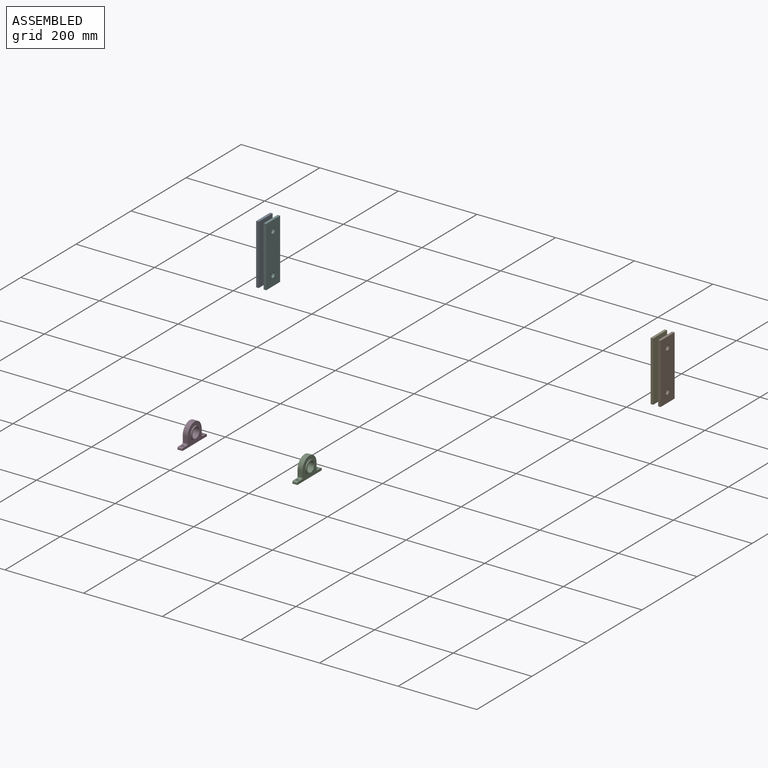
[diagram: assembled view]
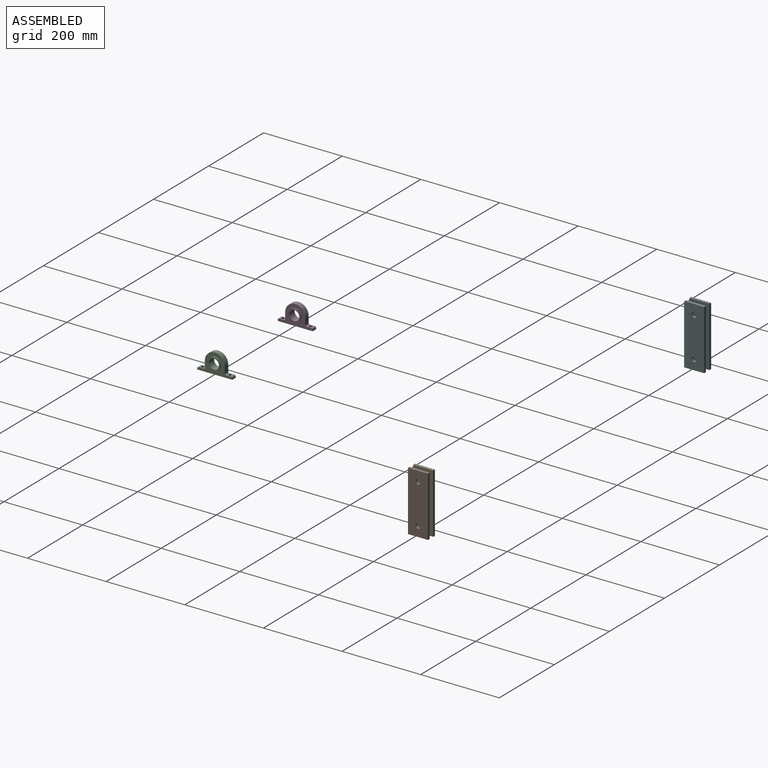
[diagram: assembled view, second angle]
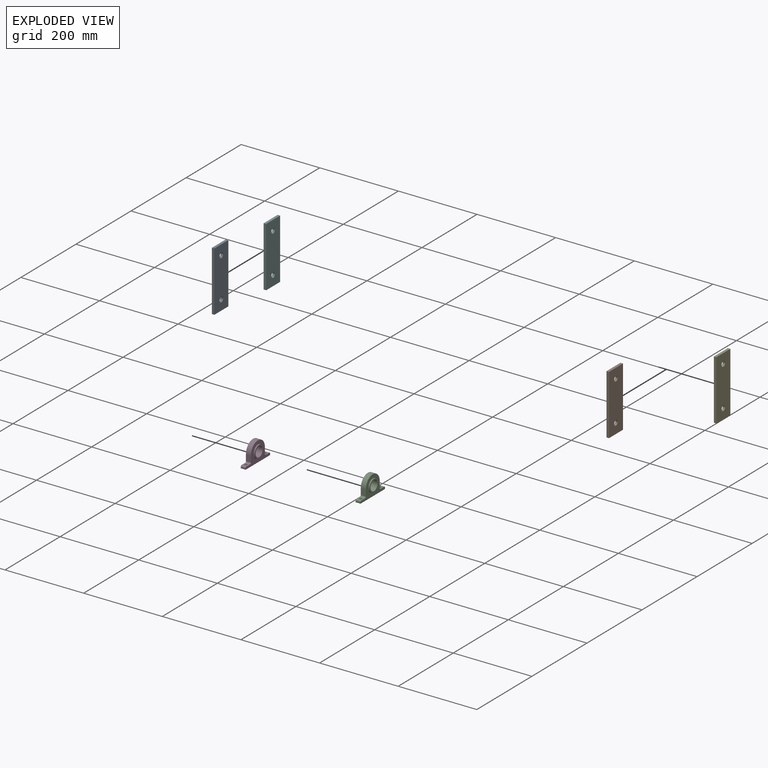
[diagram: exploded view]
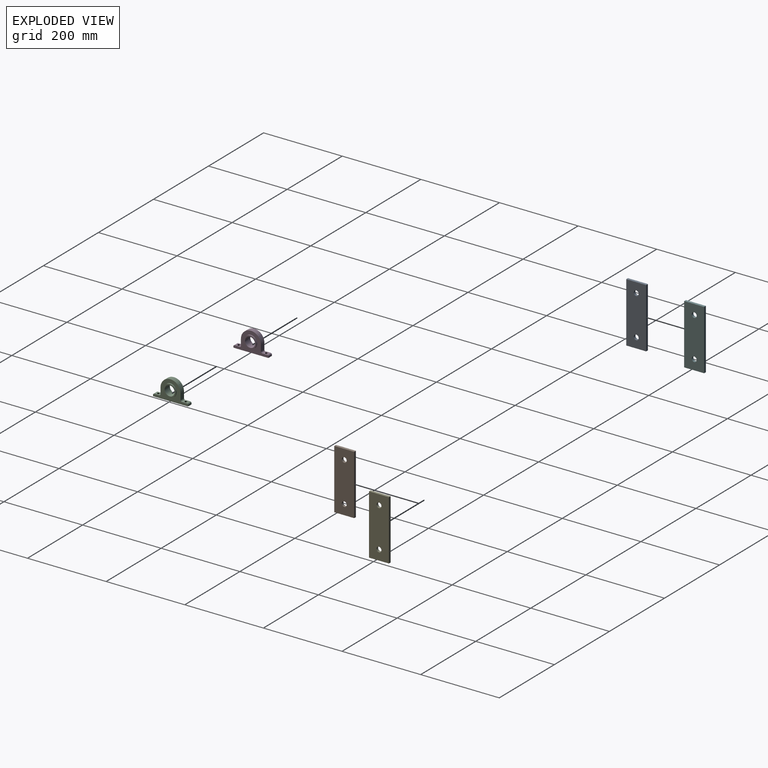
[diagram: exploded view, second angle]
ASSEMBLY  parts=6 mates=2
PART A: 8 faces, bbox 6.4x50.8x152.4 mm
  f0: plane 50.8x6.35mm, normal (0,0,1), area 322.6mm2, adj f1,f5,f6,f7
  f1: plane 152.4x6.35mm, normal (0,-1,0), area 967.7mm2, adj f0,f2,f6,f7
  f2: plane 50.8x6.35mm, normal (0,0,-1), area 322.6mm2, adj f1,f5,f6,f7
  f3: cylinder r=6.35mm len=12.7mm, axis (-1,0,0), area 253.4mm2, adj f6,f7
  f4: cylinder r=6.35mm len=12.7mm, axis (-1,0,0), area 253.4mm2, adj f6,f7
  f5: plane 152.4x6.35mm, normal (0,1,0), area 967.7mm2, adj f0,f2,f6,f7
  f6: plane 152.4x50.8mm, normal (1,0,0), area 7488.6mm2, adj f0,f1,f2,f3,f4,f5
  f7: plane 152.4x50.8mm, normal (-1,0,0), area 7488.6mm2, adj f0,f1,f2,f3,f4,f5
PART B: same geometry as A
PART C: 21 faces, bbox 19.1x88.9x50.8 mm
  f0: plane 88.9x12.7mm, normal (0,0,-1), area 1065.7mm2, adj f1,f11,f12,f13,f19,f20
  f1: plane 12.7x3.18mm, normal (0,1,0), area 40.3mm2, adj f0,f2,f12,f13
  f2: cylinder r=3.17mm len=12.7mm, axis (-1,0,0), area 63.3mm2, adj f1,f3,f12,f13
  f3: plane 12.7x12.7mm, normal (0,0,1), area 129.6mm2, adj f2,f4,f12,f13,f20
  f4: cylinder r=3.17mm len=12.7mm, axis (-1,0,0), area 63.3mm2, adj f3,f5,f12,f13
  f5: plane 15.88x12.7mm, normal (0,1,0), area 201.6mm2, adj f4,f6,f12,f13
  f6: cylinder r=25.4mm len=50.8mm, axis (-1,0,0), area 1013.4mm2, adj f5,f7,f12,f13
  f7: plane 15.88x12.7mm, normal (0,-1,0), area 201.6mm2, adj f6,f8,f12,f13
  f8: cylinder r=3.17mm len=12.7mm, axis (-1,0,0), area 63.3mm2, adj f7,f9,f12,f13
  f9: plane 12.7x12.7mm, normal (0,0,1), area 129.6mm2, adj f8,f10,f12,f13,f19
  f10: cylinder r=3.17mm len=12.7mm, axis (-1,0,0), area 63.3mm2, adj f9,f11,f12,f13
  f11: plane 12.7x3.18mm, normal (0,-1,0), area 40.3mm2, adj f0,f10,f12,f13
  f12: plane 88.9x50.8mm, normal (1,0,0), area 1753.9mm2, adj f0,f1,f2,f3,f4,f5,f6,f7
  f13: plane 88.9x50.8mm, normal (-1,0,0), area 1753.9mm2, adj f0,f1,f2,f3,f4,f5,f6,f7
  f14: cylinder r=15.88mm len=31.75mm, axis (-1,0,0), area 316.7mm2, adj f13,f18
  f15: cylinder r=12.7mm len=25.4mm, axis (-1,0,0), area 1520.1mm2, adj f17,f18
  f16: cylinder r=15.88mm len=31.75mm, axis (-1,0,0), area 316.7mm2, adj f12,f17
  f17: plane 31.75x31.75mm, normal (1,0,0), area 285mm2, adj f15,f16
  f18: plane 31.75x31.75mm, normal (-1,0,0), area 285mm2, adj f14,f15
  f19: cylinder r=3.17mm len=6.35mm, axis (0,0,-1), area 126.7mm2, adj f0,f9
  f20: cylinder r=3.17mm len=6.35mm, axis (0,0,-1), area 126.7mm2, adj f0,f3
PART D: same geometry as C
PART E: same geometry as A
PART F: same geometry as A
PLACE A rot(axis=(0,1,0),0deg) t=(-1745.57,1565.14,-761.14)mm
PLACE B t=(-723.22,1565.14,-761.14)mm
PLACE C t=(-1091.52,768.66,-568.77)mm
PLACE D t=(-1383.62,768.66,-568.77)mm
PLACE E t=(-742.27,1565.14,-761.14)mm
PLACE F t=(-1726.52,1565.14,-761.14)mm
MATE parallel B.f1 <-> E.f1  axis (0,-1,0) through (-720.04,-1194.13,-731.86)mm
MATE parallel A.f1 <-> F.f1  axis (0,-1,0) through (-1742.39,-1194.13,-731.86)mm
